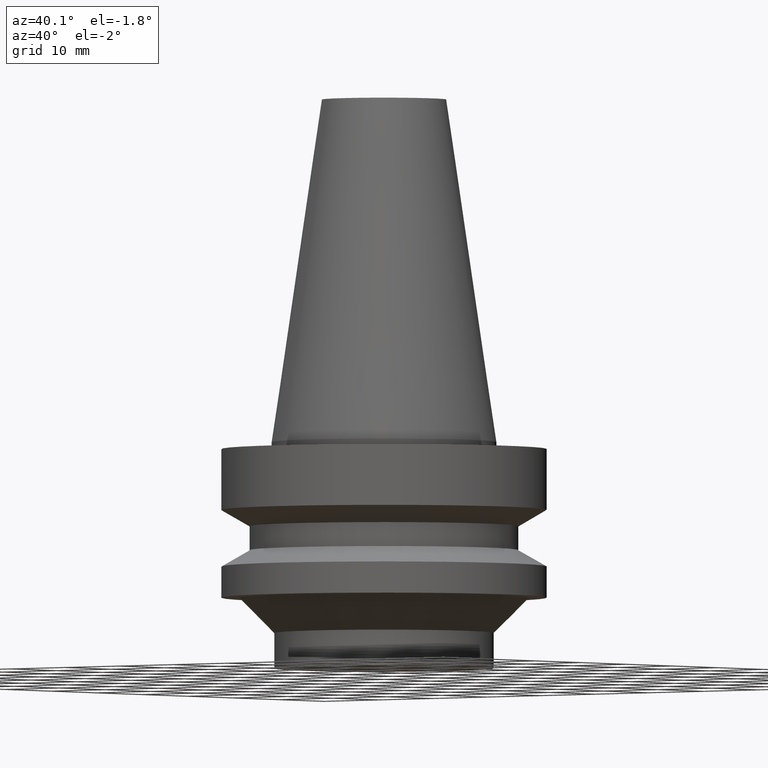
[diagram: clean part render]
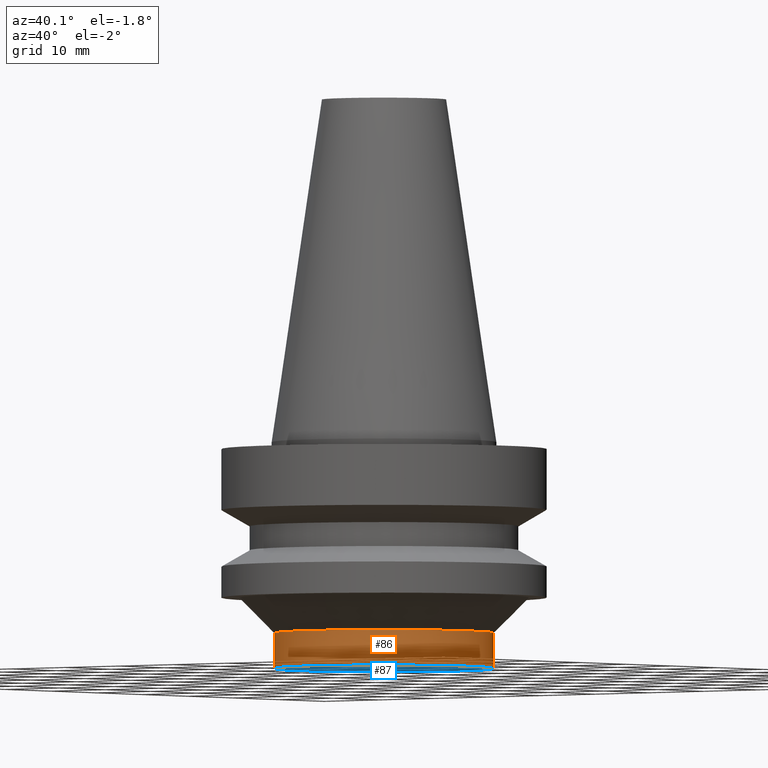
[diagram: same view with the hole feature highlighted: cylindrical wall and planar end face, labeled with their STEP entity ids]
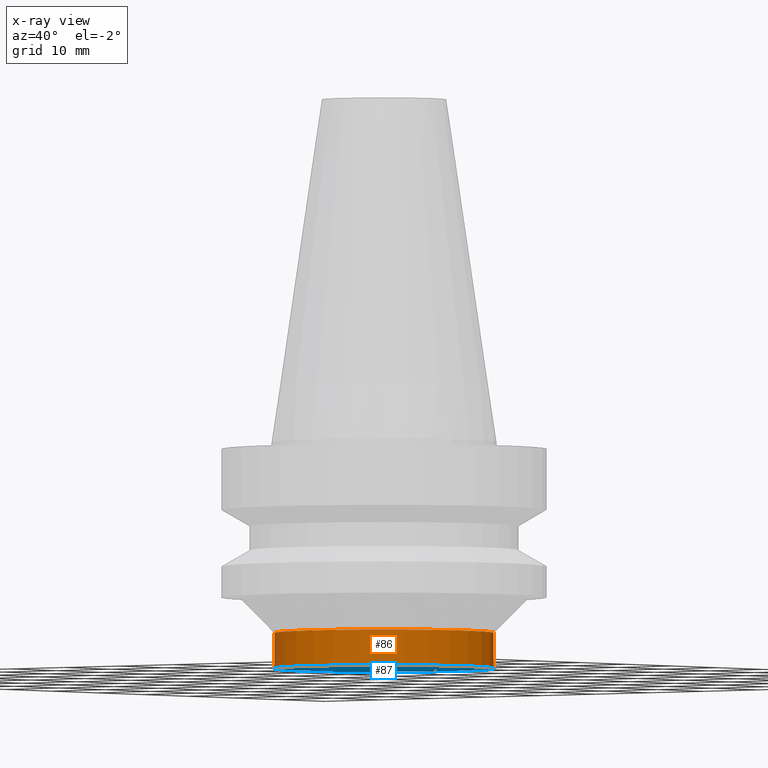
[diagram: x-ray of the same camera — body ghosted, the hole faces saturated]
A machine part, auxiliary view. The highlighted faces form one hole feature of diameter 31 mm: the cylindrical wall (entity #86, orange) and its adjacent planar end face (entity #87, blue) — they share a circular edge in the B-rep.
The next image is the same camera in x-ray (body ghosted, the hole faces saturated) — the bore reads through the body.
Wall:
#86=ADVANCED_FACE('',(#121,#122),#123,.T.);
#121=FACE_BOUND('',#158,.T.);
#122=FACE_BOUND('',#159,.T.);
#123=CYLINDRICAL_SURFACE('',#160,15.5);
#158=EDGE_LOOP('',(#217));
#159=EDGE_LOOP('',(#218));
#160=AXIS2_PLACEMENT_3D('',#219,#220,#221);
#217=ORIENTED_EDGE('',*,*,#237,.F.);
#218=ORIENTED_EDGE('',*,*,#236,.T.);
#219=CARTESIAN_POINT('',(1.80635402874235E-015,3.61270805748469E-015,-29.5));
#220=DIRECTION('',(-6.12323399573677E-017,-1.22464679914728E-016,1.0));
#221=DIRECTION('',(-1.23259516440783E-032,1.0,1.22464679914728E-016));
#236=EDGE_CURVE('',#258,#258,#259,.T.);
#237=EDGE_CURVE('',#260,#260,#261,.T.);
#258=VERTEX_POINT('',#282);
#259=CIRCLE('',#283,15.5);
#260=VERTEX_POINT('',#284);
#261=CIRCLE('',#285,15.5);
#282=CARTESIAN_POINT('',(1.65327317884893E-015,15.5,-27.0));
#283=AXIS2_PLACEMENT_3D('',#316,#317,#318);
#284=CARTESIAN_POINT('',(1.95943487863577E-015,15.5,-32.0));
#285=AXIS2_PLACEMENT_3D('',#319,#320,#321);
#316=CARTESIAN_POINT('',(1.65327317884893E-015,3.30654635769785E-015,-27.0));
#317=DIRECTION('',(6.12323399573677E-017,1.22464679914728E-016,-1.0));
#318=DIRECTION('',(-1.23259516440783E-032,1.0,1.22464679914728E-016));
#319=CARTESIAN_POINT('',(1.95943487863577E-015,3.91886975727153E-015,-32.0));
#320=DIRECTION('',(6.12323399573677E-017,1.22464679914728E-016,-1.0));
#321=DIRECTION('',(-1.23259516440783E-032,1.0,1.22464679914728E-016));
End face:
#87=ADVANCED_FACE('',(#124),#125,.T.);
#124=FACE_OUTER_BOUND('',#161,.T.);
#125=PLANE('',#162);
#161=EDGE_LOOP('',(#222));
#162=AXIS2_PLACEMENT_3D('',#223,#224,#225);
#222=ORIENTED_EDGE('',*,*,#237,.T.);
#223=CARTESIAN_POINT('',(1.95943487863577E-015,7.75,-32.0));
#224=DIRECTION('',(6.12323399573677E-017,1.22464679914735E-016,-1.0));
#225=DIRECTION('',(-1.23259516440783E-032,1.0,1.22464679914735E-016));
#237=EDGE_CURVE('',#260,#260,#261,.T.);
#260=VERTEX_POINT('',#284);
#261=CIRCLE('',#285,15.5);
#284=CARTESIAN_POINT('',(1.95943487863577E-015,15.5,-32.0));
#285=AXIS2_PLACEMENT_3D('',#319,#320,#321);
#319=CARTESIAN_POINT('',(1.95943487863577E-015,3.91886975727153E-015,-32.0));
#320=DIRECTION('',(6.12323399573677E-017,1.22464679914728E-016,-1.0));
#321=DIRECTION('',(-1.23259516440783E-032,1.0,1.22464679914728E-016));